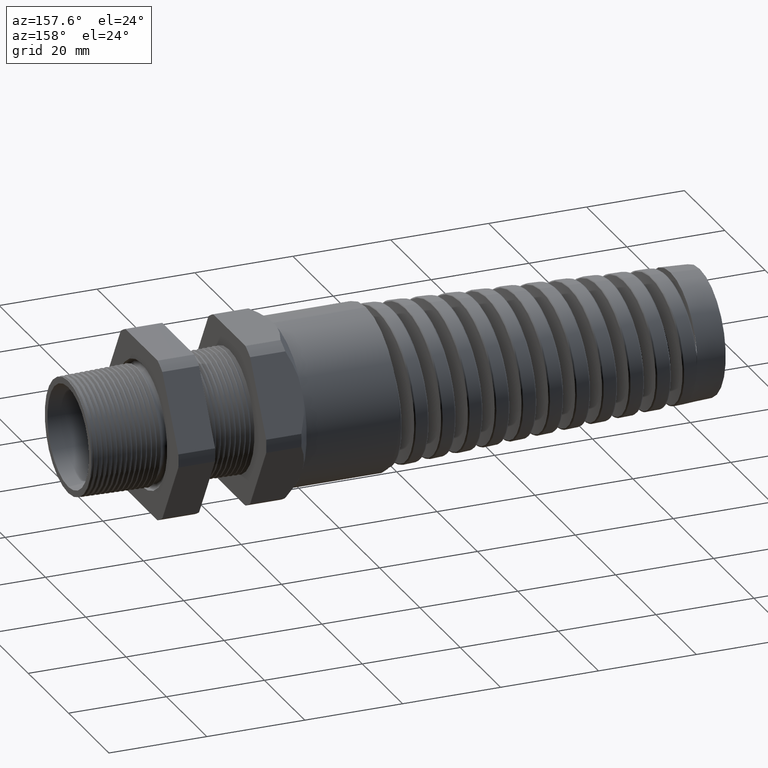
[diagram: clean part render]
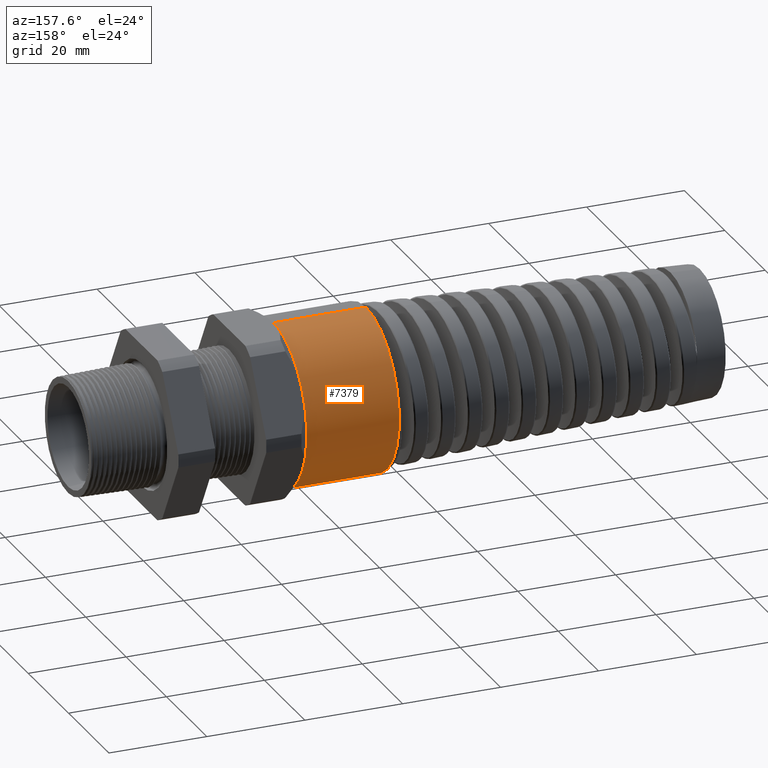
[diagram: same view with one face highlighted and labeled with its STEP entity id]
A machine part, auxiliary view. The second image highlights one B-rep face of the part: STEP entity #7379.
In plain terms, the highlighted cylindrical surface (partial cylindrical patch) has radius 16.51 mm, axis along (1, 0, 0).
Its self-contained STEP definition (entity closure, byte-faithful):
#7370 = ORIENTED_EDGE ( 'NONE', *, *, #7371, .F. ) ;
#7371 = EDGE_CURVE ( 'NONE', #7372, #7431, #19845, .T. ) ;
#7372 = VERTEX_POINT ( 'NONE', #19846 ) ;
#7379 = ADVANCED_FACE ( 'NONE', ( #19907 ), #19905, .T. ) ;
#7392 = VERTEX_POINT ( 'NONE', #19943 ) ;
#7424 = EDGE_LOOP ( 'NONE', ( #7425, #7429, #7370, #7473, #7435, #7443 ) ) ;
#7425 = ORIENTED_EDGE ( 'NONE', *, *, #7426, .F. ) ;
#7426 = EDGE_CURVE ( 'NONE', #7427, #7428, #19957, .T. ) ;
#7427 = VERTEX_POINT ( 'NONE', #19952 ) ;
#7428 = VERTEX_POINT ( 'NONE', #19951 ) ;
#7429 = ORIENTED_EDGE ( 'NONE', *, *, #7430, .T. ) ;
#7430 = EDGE_CURVE ( 'NONE', #7427, #7431, #19950, .T. ) ;
#7431 = VERTEX_POINT ( 'NONE', #19946 ) ;
#7435 = ORIENTED_EDGE ( 'NONE', *, *, #7444, .F. ) ;
#7443 = ORIENTED_EDGE ( 'NONE', *, *, #7467, .F. ) ;
#7444 = EDGE_CURVE ( 'NONE', #7455, #7392, #19988, .T. ) ;
#7455 = VERTEX_POINT ( 'NONE', #20023 ) ;
#7456 = EDGE_CURVE ( 'NONE', #7392, #7372, #20022, .T. ) ;
#7467 = EDGE_CURVE ( 'NONE', #7428, #7455, #20111, .T. ) ;
#7473 = ORIENTED_EDGE ( 'NONE', *, *, #7456, .F. ) ;
#19841 = DIRECTION ( 'NONE',  ( 0.0000000000000000000, 0.0000000000000000000, -1.000000000000000000 ) ) ;
#19842 = DIRECTION ( 'NONE',  ( 1.000000000000000000, 0.0000000000000000000, 0.0000000000000000000 ) ) ;
#19843 = CARTESIAN_POINT ( 'NONE',  ( -1.370551181102362500, 0.0000000000000000000, 0.0000000000000000000 ) ) ;
#19844 = AXIS2_PLACEMENT_3D ( 'NONE', #19843, #19842, #19841 ) ;
#19845 = CIRCLE ( 'NONE', #19844, 0.6499999999999999100 ) ;
#19846 = CARTESIAN_POINT ( 'NONE',  ( -1.370551181102362300, 0.5629165124598853900, 0.3249999999999999600 ) ) ;
#19901 = DIRECTION ( 'NONE',  ( 0.0000000000000000000, 0.0000000000000000000, -1.000000000000000000 ) ) ;
#19902 = DIRECTION ( 'NONE',  ( 1.000000000000000000, 0.0000000000000000000, 0.0000000000000000000 ) ) ;
#19903 = CARTESIAN_POINT ( 'NONE',  ( 1.326736918405036800, 0.0000000000000000000, 0.0000000000000000000 ) ) ;
#19904 = AXIS2_PLACEMENT_3D ( 'NONE', #19903, #19902, #19901 ) ;
#19905 = CYLINDRICAL_SURFACE ( 'NONE', #19904, 0.6499999999999999100 ) ;
#19907 = FACE_OUTER_BOUND ( 'NONE', #7424, .T. ) ;
#19943 = CARTESIAN_POINT ( 'NONE',  ( -1.370551181102362300, 0.5629165124598853900, -0.3249999999999999000 ) ) ;
#19946 = CARTESIAN_POINT ( 'NONE',  ( -1.370551181102362300, 0.0000000000000000000, 0.6500000000000000200 ) ) ;
#19947 = DIRECTION ( 'NONE',  ( 1.000000000000000000, 0.0000000000000000000, 0.0000000000000000000 ) ) ;
#19948 = VECTOR ( 'NONE', #19947, 39.37007874015748100 ) ;
#19949 = CARTESIAN_POINT ( 'NONE',  ( 1.326736918405036800, 7.960204194457794200E-017, 0.6499999999999999100 ) ) ;
#19950 = LINE ( 'NONE', #19949, #19948 ) ;
#19951 = CARTESIAN_POINT ( 'NONE',  ( -2.115199598098571600, 0.0000000000000000000, -0.6500000000000000200 ) ) ;
#19952 = CARTESIAN_POINT ( 'NONE',  ( -2.115199598098571600, 7.960204194457795500E-017, 0.6500000000000000200 ) ) ;
#19953 = DIRECTION ( 'NONE',  ( 0.0000000000000000000, 0.0000000000000000000, 1.000000000000000000 ) ) ;
#19954 = DIRECTION ( 'NONE',  ( -1.000000000000000000, 0.0000000000000000000, 0.0000000000000000000 ) ) ;
#19955 = CARTESIAN_POINT ( 'NONE',  ( -2.115199598098571600, 0.0000000000000000000, 0.0000000000000000000 ) ) ;
#19956 = AXIS2_PLACEMENT_3D ( 'NONE', #19955, #19954, #19953 ) ;
#19957 = CIRCLE ( 'NONE', #19956, 0.6500000000000000200 ) ;
#19985 = DIRECTION ( 'NONE',  ( 0.0000000000000000000, 0.0000000000000000000, -1.000000000000000000 ) ) ;
#19986 = DIRECTION ( 'NONE',  ( 1.000000000000000000, 0.0000000000000000000, 0.0000000000000000000 ) ) ;
#19987 = AXIS2_PLACEMENT_3D ( 'NONE', #19994, #19986, #19985 ) ;
#19988 = CIRCLE ( 'NONE', #19987, 0.6499999999999999100 ) ;
#19994 = CARTESIAN_POINT ( 'NONE',  ( -1.370551181102362500, 0.0000000000000000000, 0.0000000000000000000 ) ) ;
#20018 = DIRECTION ( 'NONE',  ( 0.0000000000000000000, 0.0000000000000000000, -1.000000000000000000 ) ) ;
#20019 = DIRECTION ( 'NONE',  ( 1.000000000000000000, 0.0000000000000000000, 0.0000000000000000000 ) ) ;
#20020 = CARTESIAN_POINT ( 'NONE',  ( -1.370551181102362500, 0.0000000000000000000, 0.0000000000000000000 ) ) ;
#20021 = AXIS2_PLACEMENT_3D ( 'NONE', #20020, #20019, #20018 ) ;
#20022 = CIRCLE ( 'NONE', #20021, 0.6499999999999999100 ) ;
#20023 = CARTESIAN_POINT ( 'NONE',  ( -1.370551181102362300, 0.0000000000000000000, -0.6500000000000000200 ) ) ;
#20108 = DIRECTION ( 'NONE',  ( 1.000000000000000000, 0.0000000000000000000, 0.0000000000000000000 ) ) ;
#20109 = VECTOR ( 'NONE', #20108, 39.37007874015748100 ) ;
#20110 = CARTESIAN_POINT ( 'NONE',  ( 1.326736918405036800, 0.0000000000000000000, -0.6499999999999999100 ) ) ;
#20111 = LINE ( 'NONE', #20110, #20109 ) ;